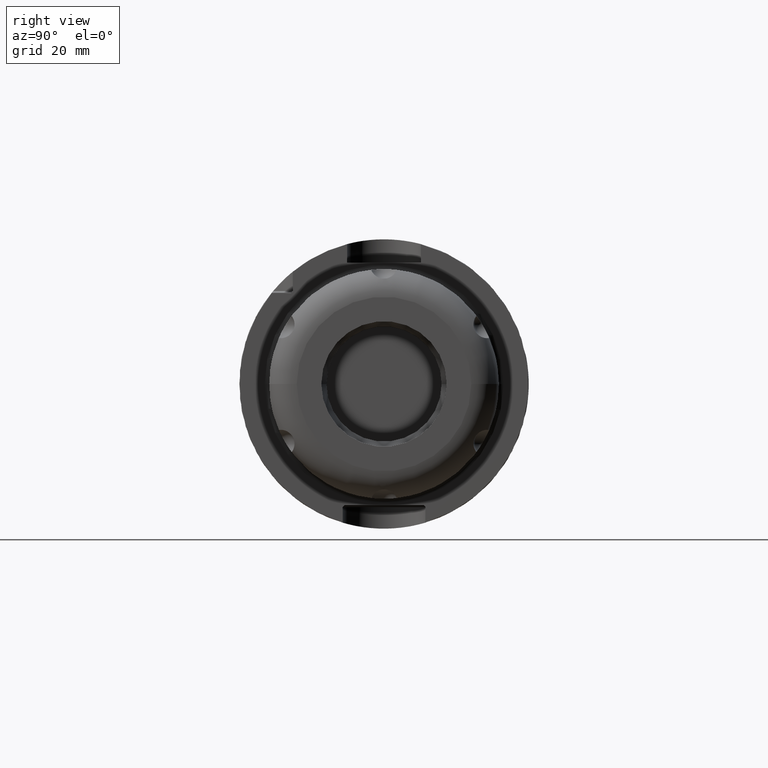
[diagram: clean part render]
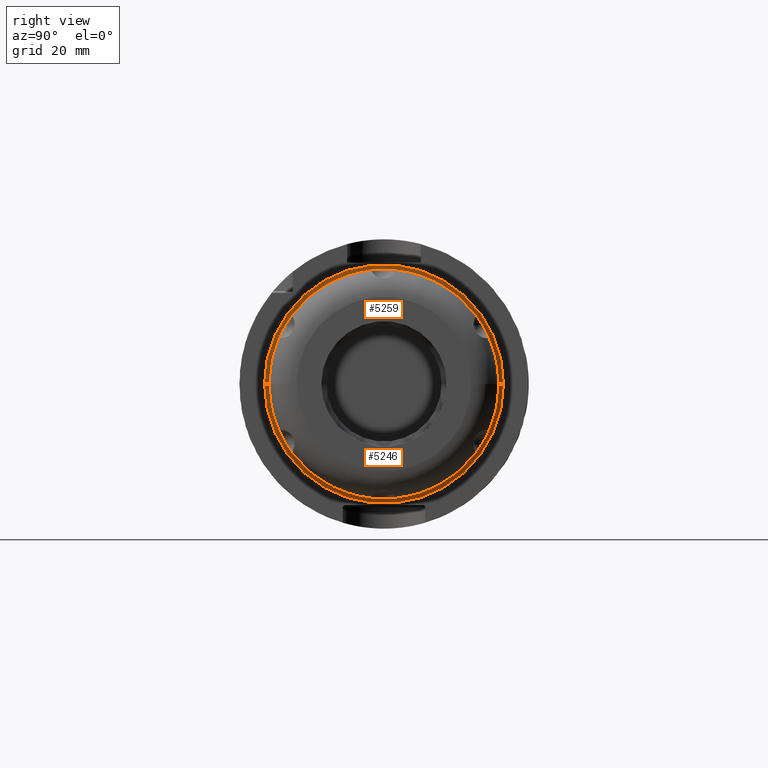
[diagram: same view with one multi-face feature highlighted, each face labeled with its STEP entity id]
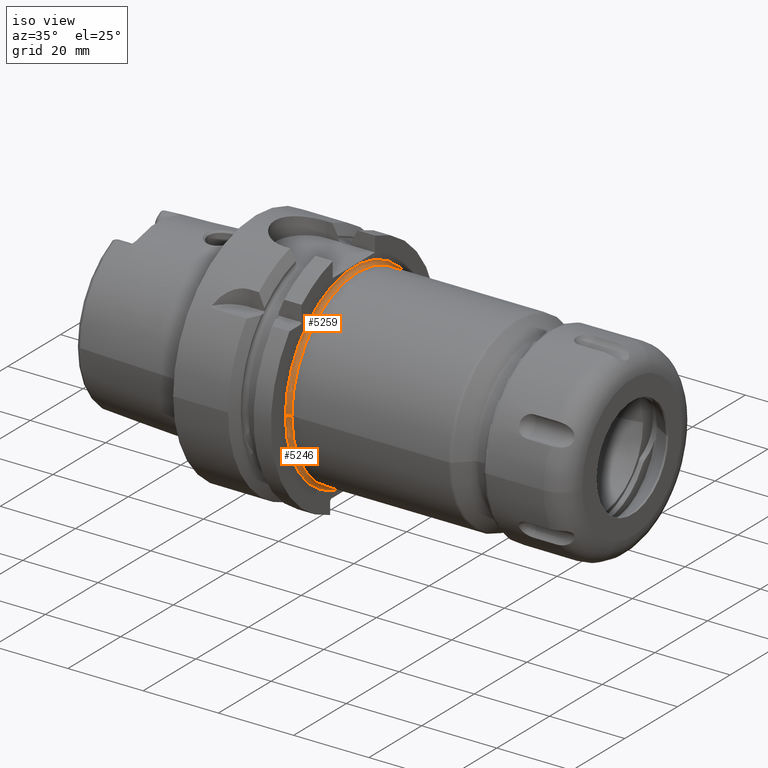
[diagram: same view with one multi-face feature highlighted, each face labeled with its STEP entity id]
A machine part, right view. The highlighted faces form ONE feature: a constant-radius fillet chain: 2 tangent blend faces with common blend radius 1 mm. The faces share edges in the B-rep.
A second angle (iso view) of the same feature is appended — it is thin or edge-on in the first view.
Their STEP definitions:
[1] entity #5259 (Torus):
#1713=CARTESIAN_POINT('',(2.6E1,0.E0,0.E0));
#1714=DIRECTION('',(1.E0,0.E0,0.E0));
#1715=DIRECTION('',(0.E0,1.E0,0.E0));
#1716=AXIS2_PLACEMENT_3D('',#1713,#1714,#1715);
#1956=CARTESIAN_POINT('',(2.7E1,-2.6E1,0.E0));
#1957=DIRECTION('',(0.E0,0.E0,-1.E0));
#1958=DIRECTION('',(-1.E0,0.E0,0.E0));
#1959=AXIS2_PLACEMENT_3D('',#1956,#1957,#1958);
#1961=CARTESIAN_POINT('',(2.7E1,2.6E1,0.E0));
#1962=DIRECTION('',(0.E0,0.E0,1.E0));
#1963=DIRECTION('',(-1.E0,0.E0,0.E0));
#1964=AXIS2_PLACEMENT_3D('',#1961,#1962,#1963);
#1971=CARTESIAN_POINT('',(2.7E1,0.E0,0.E0));
#1972=DIRECTION('',(1.E0,0.E0,0.E0));
#1973=DIRECTION('',(0.E0,1.E0,0.E0));
#1974=AXIS2_PLACEMENT_3D('',#1971,#1972,#1973);
#3116=CARTESIAN_POINT('',(2.6E1,-2.6E1,0.E0));
#3117=CARTESIAN_POINT('',(2.6E1,2.6E1,0.E0));
#3118=VERTEX_POINT('',#3116);
#3119=VERTEX_POINT('',#3117);
#3120=CARTESIAN_POINT('',(2.7E1,-2.5E1,0.E0));
#3121=CARTESIAN_POINT('',(2.7E1,2.5E1,0.E0));
#3122=VERTEX_POINT('',#3120);
#3123=VERTEX_POINT('',#3121);
#5247=CARTESIAN_POINT('',(2.7E1,0.E0,0.E0));
#5248=DIRECTION('',(1.E0,0.E0,0.E0));
#5249=DIRECTION('',(0.E0,9.999952710842E-1,-3.075355152292E-3));
#5250=AXIS2_PLACEMENT_3D('',#5247,#5248,#5249);
#5251=TOROIDAL_SURFACE('',#5250,2.6E1,1.E0);
#5252=ORIENTED_EDGE('',*,*,#4941,.F.);
#5253=ORIENTED_EDGE('',*,*,#5242,.T.);
#5255=ORIENTED_EDGE('',*,*,#5254,.T.);
#5256=ORIENTED_EDGE('',*,*,#5238,.F.);
#5257=EDGE_LOOP('',(#5252,#5253,#5255,#5256));
#5258=FACE_OUTER_BOUND('',#5257,.F.);
#5259=ADVANCED_FACE('',(#5258),#5251,.F.);
#1717=CIRCLE('',#1716,2.6E1);
#1960=CIRCLE('',#1959,1.E0);
#1965=CIRCLE('',#1964,1.E0);
#1975=CIRCLE('',#1974,2.5E1);
#4941=EDGE_CURVE('',#3119,#3118,#1717,.T.);
#5238=EDGE_CURVE('',#3118,#3122,#1960,.T.);
#5242=EDGE_CURVE('',#3119,#3123,#1965,.T.);
#5254=EDGE_CURVE('',#3123,#3122,#1975,.T.);
[2] entity #5246 (Torus):
#1708=CARTESIAN_POINT('',(2.6E1,0.E0,0.E0));
#1709=DIRECTION('',(1.E0,0.E0,0.E0));
#1710=DIRECTION('',(0.E0,-1.E0,0.E0));
#1711=AXIS2_PLACEMENT_3D('',#1708,#1709,#1710);
#1956=CARTESIAN_POINT('',(2.7E1,-2.6E1,0.E0));
#1957=DIRECTION('',(0.E0,0.E0,-1.E0));
#1958=DIRECTION('',(-1.E0,0.E0,0.E0));
#1959=AXIS2_PLACEMENT_3D('',#1956,#1957,#1958);
#1961=CARTESIAN_POINT('',(2.7E1,2.6E1,0.E0));
#1962=DIRECTION('',(0.E0,0.E0,1.E0));
#1963=DIRECTION('',(-1.E0,0.E0,0.E0));
#1964=AXIS2_PLACEMENT_3D('',#1961,#1962,#1963);
#1995=CARTESIAN_POINT('',(2.7E1,0.E0,0.E0));
#1996=DIRECTION('',(1.E0,0.E0,0.E0));
#1997=DIRECTION('',(0.E0,-1.E0,0.E0));
#1998=AXIS2_PLACEMENT_3D('',#1995,#1996,#1997);
#3116=CARTESIAN_POINT('',(2.6E1,-2.6E1,0.E0));
#3117=CARTESIAN_POINT('',(2.6E1,2.6E1,0.E0));
#3118=VERTEX_POINT('',#3116);
#3119=VERTEX_POINT('',#3117);
#3120=CARTESIAN_POINT('',(2.7E1,-2.5E1,0.E0));
#3121=CARTESIAN_POINT('',(2.7E1,2.5E1,0.E0));
#3122=VERTEX_POINT('',#3120);
#3123=VERTEX_POINT('',#3121);
#5232=CARTESIAN_POINT('',(2.7E1,0.E0,0.E0));
#5233=DIRECTION('',(1.E0,0.E0,0.E0));
#5234=DIRECTION('',(0.E0,-9.999952710842E-1,3.075355152292E-3));
#5235=AXIS2_PLACEMENT_3D('',#5232,#5233,#5234);
#5236=TOROIDAL_SURFACE('',#5235,2.6E1,1.E0);
#5237=ORIENTED_EDGE('',*,*,#4939,.F.);
#5239=ORIENTED_EDGE('',*,*,#5238,.T.);
#5241=ORIENTED_EDGE('',*,*,#5240,.T.);
#5243=ORIENTED_EDGE('',*,*,#5242,.F.);
#5244=EDGE_LOOP('',(#5237,#5239,#5241,#5243));
#5245=FACE_OUTER_BOUND('',#5244,.F.);
#5246=ADVANCED_FACE('',(#5245),#5236,.F.);
#1712=CIRCLE('',#1711,2.6E1);
#1960=CIRCLE('',#1959,1.E0);
#1965=CIRCLE('',#1964,1.E0);
#1999=CIRCLE('',#1998,2.5E1);
#4939=EDGE_CURVE('',#3118,#3119,#1712,.T.);
#5238=EDGE_CURVE('',#3118,#3122,#1960,.T.);
#5240=EDGE_CURVE('',#3122,#3123,#1999,.T.);
#5242=EDGE_CURVE('',#3119,#3123,#1965,.T.);